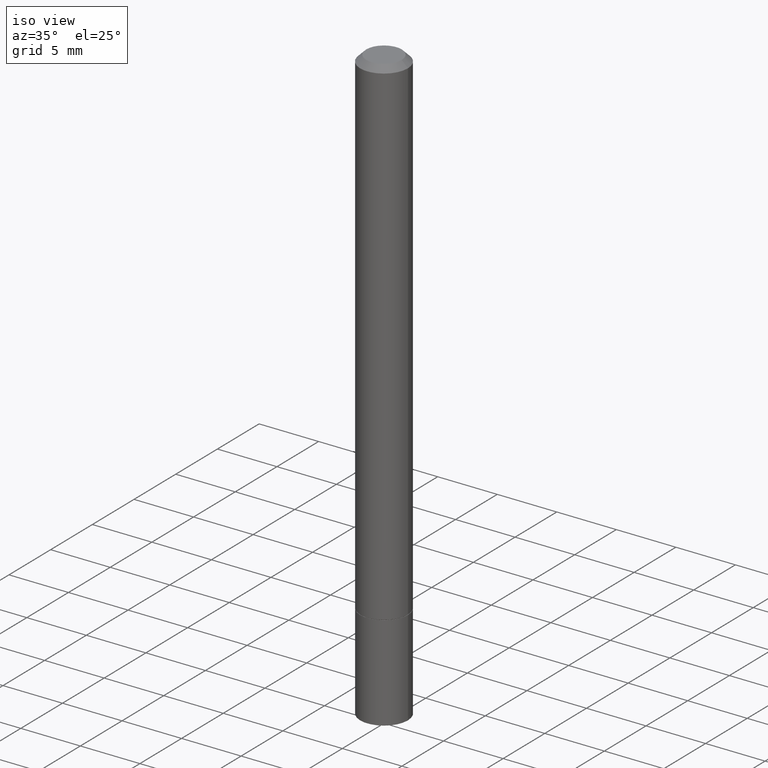
[diagram: clean part render]
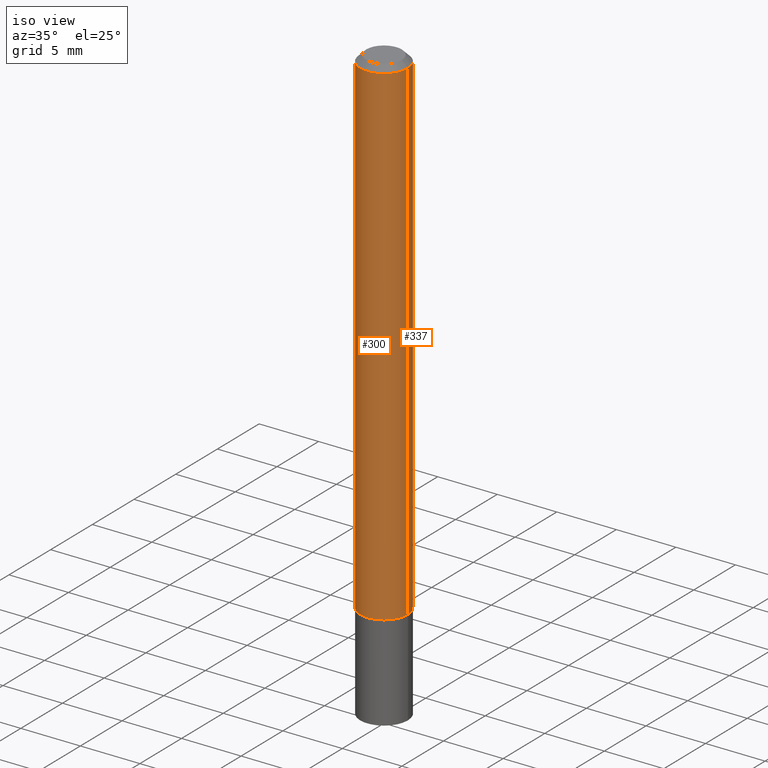
[diagram: same view with one multi-face feature highlighted, each face labeled with its STEP entity id]
A machine part, iso view. The highlighted faces form ONE feature: a constant-radius fillet chain: 2 tangent blend faces with common blend radius 2.0002 mm. The faces share edges in the B-rep.
Their STEP definitions:
[1] entity #300 (Cylinder):
#1 = ORIENTED_EDGE ( 'NONE', *, *, #291, .T. ) ;
#6 = DIRECTION ( 'NONE',  ( 1.000000000000000000, -6.982962677686266711E-15, 4.876176775795935793E-29 ) ) ;
#8 = VERTEX_POINT ( 'NONE', #246 ) ;
#14 = CARTESIAN_POINT ( 'NONE',  ( 0.000000000000000000, 0.000000000000000000, 0.000000000000000000 ) ) ;
#18 = DIRECTION ( 'NONE',  ( -2.445468806185136597E-29, 3.491481338843145583E-15, 1.000000000000000000 ) ) ;
#27 = DIRECTION ( 'NONE',  ( -2.445468806185136877E-29, 3.491481338843145188E-15, 1.000000000000000000 ) ) ;
#37 = EDGE_LOOP ( 'NONE', ( #150, #130, #1, #43 ) ) ;
#43 = ORIENTED_EDGE ( 'NONE', *, *, #59, .F. ) ;
#46 = DIRECTION ( 'NONE',  ( 1.000000000000000000, -6.982962677686264344E-15, 0.000000000000000000 ) ) ;
#55 = CARTESIAN_POINT ( 'NONE',  ( 0.07874999999999997280, -6.319581223306091410E-15, -1.652499999999999858 ) ) ;
#56 = CARTESIAN_POINT ( 'NONE',  ( -0.07874999999999988953, 5.595524044110781115E-16, -3.873661383575732887E-30 ) ) ;
#59 = EDGE_CURVE ( 'NONE', #160, #8, #263, .T. ) ;
#69 = VERTEX_POINT ( 'NONE', #55 ) ;
#72 = VERTEX_POINT ( 'NONE', #252 ) ;
#74 = CIRCLE ( 'NONE', #265, 0.07874999999999997280 ) ;
#77 = CARTESIAN_POINT ( 'NONE',  ( -0.07874999999999980627, 4.800786840909291600E-16, -0.02000000000000001776 ) ) ;
#130 = ORIENTED_EDGE ( 'NONE', *, *, #334, .T. ) ;
#144 = EDGE_CURVE ( 'NONE', #72, #160, #192, .T. ) ;
#150 = ORIENTED_EDGE ( 'NONE', *, *, #144, .F. ) ;
#155 = CARTESIAN_POINT ( 'NONE',  ( 4.041137202220937598E-29, -5.769672912438298064E-15, -1.652499999999999858 ) ) ;
#160 = VERTEX_POINT ( 'NONE', #77 ) ;
#161 = VECTOR ( 'NONE', #248, 39.37007874015748143 ) ;
#163 = CARTESIAN_POINT ( 'NONE',  ( 4.890937612370276662E-31, -6.982962677686296539E-17, -0.02000000000000001776 ) ) ;
#167 = VECTOR ( 'NONE', #27, 39.37007874015748143 ) ;
#192 = LINE ( 'NONE', #56, #161 ) ;
#215 = DIRECTION ( 'NONE',  ( -2.445468806185136597E-29, 3.491481338843145583E-15, 1.000000000000000000 ) ) ;
#218 = AXIS2_PLACEMENT_3D ( 'NONE', #14, #215, #6 ) ;
#225 = LINE ( 'NONE', #308, #167 ) ;
#246 = CARTESIAN_POINT ( 'NONE',  ( 0.07874999999999980627, -6.100938441013697087E-16, -0.02000000000000001776 ) ) ;
#248 = DIRECTION ( 'NONE',  ( -2.445468806185136877E-29, 3.491481338843145188E-15, 1.000000000000000000 ) ) ;
#252 = CARTESIAN_POINT ( 'NONE',  ( -0.07874999999999997280, -2.360198865196498330E-15, -1.652499999999999858 ) ) ;
#253 = FACE_OUTER_BOUND ( 'NONE', #37, .T. ) ;
#259 = CYLINDRICAL_SURFACE ( 'NONE', #218, 0.07874999999999988953 ) ;
#263 = CIRCLE ( 'NONE', #325, 0.07874999999999980627 ) ;
#265 = AXIS2_PLACEMENT_3D ( 'NONE', #155, #315, #46 ) ;
#283 = DIRECTION ( 'NONE',  ( 1.000000000000000000, -6.982962677686266711E-15, 0.000000000000000000 ) ) ;
#291 = EDGE_CURVE ( 'NONE', #69, #8, #225, .T. ) ;
#300 = ADVANCED_FACE ( 'NONE', ( #253 ), #259, .T. ) ;
#308 = CARTESIAN_POINT ( 'NONE',  ( 0.07874999999999988953, -5.499083108677927540E-16, 3.839989210939294112E-30 ) ) ;
#315 = DIRECTION ( 'NONE',  ( -2.445468806185136597E-29, 3.491481338843145583E-15, 1.000000000000000000 ) ) ;
#325 = AXIS2_PLACEMENT_3D ( 'NONE', #163, #18, #283 ) ;
#334 = EDGE_CURVE ( 'NONE', #72, #69, #74, .T. ) ;
[2] entity #337 (Cylinder):
#8 = VERTEX_POINT ( 'NONE', #246 ) ;
#11 = FACE_OUTER_BOUND ( 'NONE', #175, .T. ) ;
#27 = DIRECTION ( 'NONE',  ( -2.445468806185136877E-29, 3.491481338843145188E-15, 1.000000000000000000 ) ) ;
#39 = DIRECTION ( 'NONE',  ( 1.000000000000000000, -6.982962677686266711E-15, 4.876176775795935793E-29 ) ) ;
#55 = CARTESIAN_POINT ( 'NONE',  ( 0.07874999999999997280, -6.319581223306091410E-15, -1.652499999999999858 ) ) ;
#56 = CARTESIAN_POINT ( 'NONE',  ( -0.07874999999999988953, 5.595524044110781115E-16, -3.873661383575732887E-30 ) ) ;
#65 = AXIS2_PLACEMENT_3D ( 'NONE', #255, #288, #173 ) ;
#68 = CYLINDRICAL_SURFACE ( 'NONE', #211, 0.07874999999999988953 ) ;
#69 = VERTEX_POINT ( 'NONE', #55 ) ;
#72 = VERTEX_POINT ( 'NONE', #252 ) ;
#77 = CARTESIAN_POINT ( 'NONE',  ( -0.07874999999999980627, 4.800786840909291600E-16, -0.02000000000000001776 ) ) ;
#88 = ORIENTED_EDGE ( 'NONE', *, *, #144, .T. ) ;
#93 = EDGE_CURVE ( 'NONE', #8, #160, #226, .T. ) ;
#101 = DIRECTION ( 'NONE',  ( 1.000000000000000000, -6.982962677686264344E-15, 0.000000000000000000 ) ) ;
#117 = CARTESIAN_POINT ( 'NONE',  ( 0.000000000000000000, 0.000000000000000000, 0.000000000000000000 ) ) ;
#131 = AXIS2_PLACEMENT_3D ( 'NONE', #234, #240, #101 ) ;
#144 = EDGE_CURVE ( 'NONE', #72, #160, #192, .T. ) ;
#160 = VERTEX_POINT ( 'NONE', #77 ) ;
#161 = VECTOR ( 'NONE', #248, 39.37007874015748143 ) ;
#167 = VECTOR ( 'NONE', #27, 39.37007874015748143 ) ;
#173 = DIRECTION ( 'NONE',  ( 1.000000000000000000, -6.982962677686266711E-15, 0.000000000000000000 ) ) ;
#175 = EDGE_LOOP ( 'NONE', ( #298, #88, #290, #272 ) ) ;
#192 = LINE ( 'NONE', #56, #161 ) ;
#211 = AXIS2_PLACEMENT_3D ( 'NONE', #117, #266, #39 ) ;
#225 = LINE ( 'NONE', #308, #167 ) ;
#226 = CIRCLE ( 'NONE', #65, 0.07874999999999980627 ) ;
#234 = CARTESIAN_POINT ( 'NONE',  ( 4.041137202220937598E-29, -5.769672912438298064E-15, -1.652499999999999858 ) ) ;
#240 = DIRECTION ( 'NONE',  ( -2.445468806185136597E-29, 3.491481338843145583E-15, 1.000000000000000000 ) ) ;
#246 = CARTESIAN_POINT ( 'NONE',  ( 0.07874999999999980627, -6.100938441013697087E-16, -0.02000000000000001776 ) ) ;
#248 = DIRECTION ( 'NONE',  ( -2.445468806185136877E-29, 3.491481338843145188E-15, 1.000000000000000000 ) ) ;
#252 = CARTESIAN_POINT ( 'NONE',  ( -0.07874999999999997280, -2.360198865196498330E-15, -1.652499999999999858 ) ) ;
#255 = CARTESIAN_POINT ( 'NONE',  ( 4.890937612370276662E-31, -6.982962677686296539E-17, -0.02000000000000001776 ) ) ;
#266 = DIRECTION ( 'NONE',  ( -2.445468806185136597E-29, 3.491481338843145583E-15, 1.000000000000000000 ) ) ;
#272 = ORIENTED_EDGE ( 'NONE', *, *, #291, .F. ) ;
#288 = DIRECTION ( 'NONE',  ( -2.445468806185136597E-29, 3.491481338843145583E-15, 1.000000000000000000 ) ) ;
#290 = ORIENTED_EDGE ( 'NONE', *, *, #93, .F. ) ;
#291 = EDGE_CURVE ( 'NONE', #69, #8, #225, .T. ) ;
#294 = CIRCLE ( 'NONE', #131, 0.07874999999999997280 ) ;
#298 = ORIENTED_EDGE ( 'NONE', *, *, #342, .T. ) ;
#308 = CARTESIAN_POINT ( 'NONE',  ( 0.07874999999999988953, -5.499083108677927540E-16, 3.839989210939294112E-30 ) ) ;
#337 = ADVANCED_FACE ( 'NONE', ( #11 ), #68, .T. ) ;
#342 = EDGE_CURVE ( 'NONE', #69, #72, #294, .T. ) ;